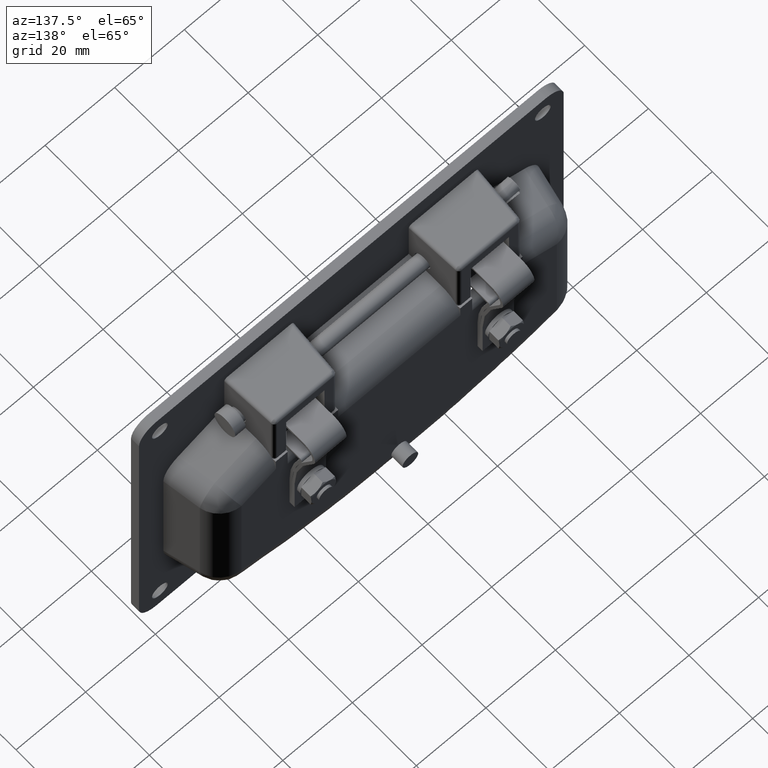
[diagram: clean part render]
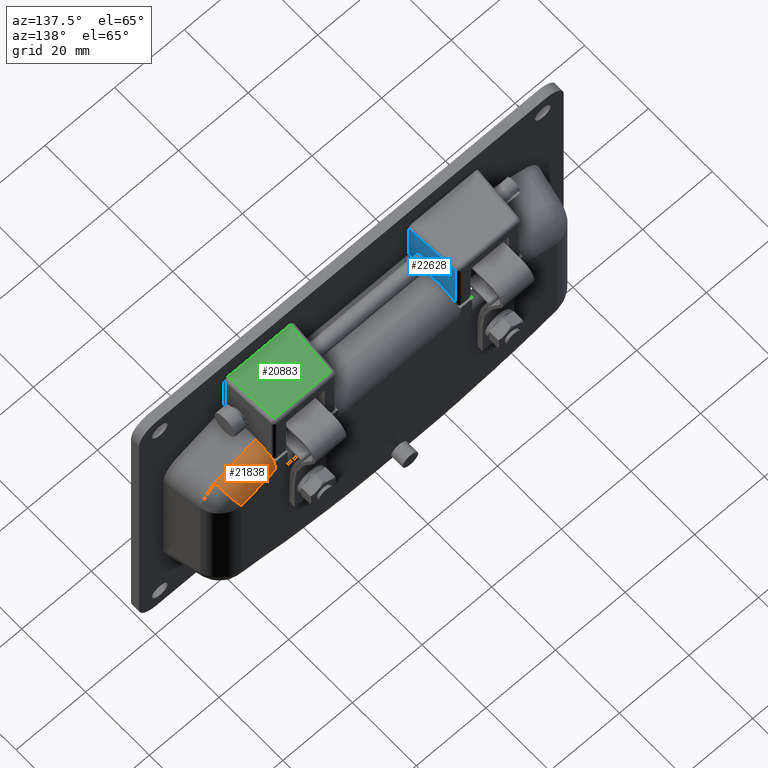
[diagram: same view with three faces highlighted in distinct colors, each labeled with its STEP entity id]
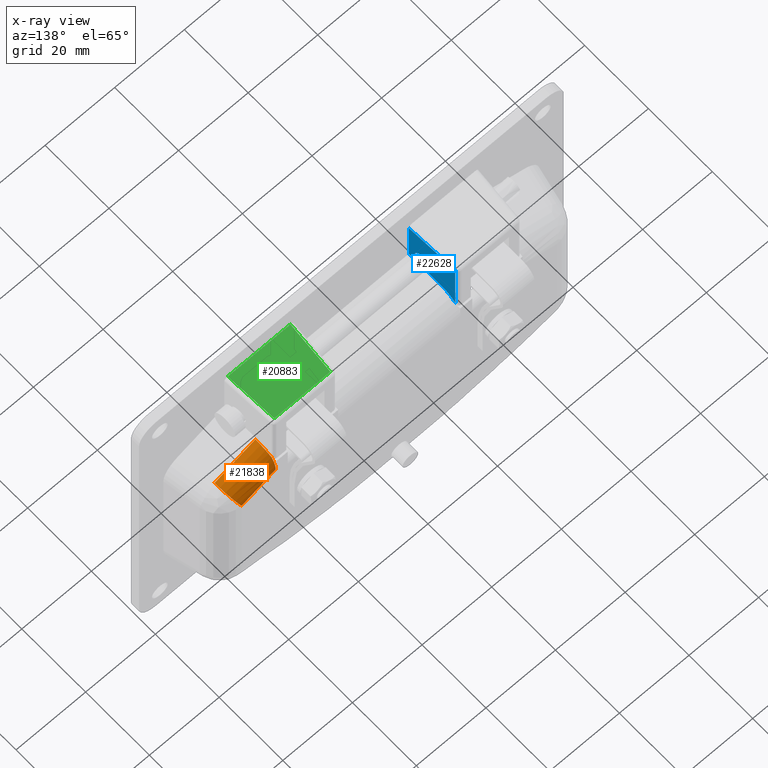
[diagram: x-ray of the same camera — body ghosted, the three highlighted faces saturated]
A machine part, auxiliary view with three faces highlighted in distinct colors.
The next image is the same camera in x-ray (body ghosted, the three faces saturated) — at least one of them is partly hidden behind the body in this view.
Their STEP definitions:

[orange] entity #21838 — the highlighted face is a freeform B-spline surface patch.
#19285=CARTESIAN_POINT('',(9.747390138087290,-35.551461698415451,-7.117702546395960));
#19286=VERTEX_POINT('',#19285);
#21580=CARTESIAN_POINT('',(11.0,-45.261361192773997,-15.492433401015450));
#21581=VERTEX_POINT('',#21580);
#21749=CARTESIAN_POINT('',(5.372821035614480,-47.901389522526202,-9.156376833853161));
#21750=VERTEX_POINT('',#21749);
#21751=CARTESIAN_POINT('',(11.0,-45.261361192773997,-15.492433401015450));
#21752=CARTESIAN_POINT('',(11.000000000000002,-47.468526284402984,-10.195246732211764));
#21753=CARTESIAN_POINT('',(5.372821035614478,-47.901389522526152,-9.156376833853154));
#21761=(BOUNDED_CURVE()B_SPLINE_CURVE(2,(#21751,#21752,#21753),.UNSPECIFIED.,.F.,.U.)CURVE()GEOMETRIC_REPRESENTATION_ITEM()QUASI_UNIFORM_CURVE()RATIONAL_B_SPLINE_CURVE((1.0,0.773342514931795,1.0))REPRESENTATION_ITEM(''));
#21762=EDGE_CURVE('',#21581,#21750,#21761,.T.);
#21781=CARTESIAN_POINT('',(10.996952935492899,-45.476338669520452,-15.805735231518961));
#21782=CARTESIAN_POINT('',(10.996952935492899,-33.103861906944879,-10.650527285351790));
#21783=CARTESIAN_POINT('',(11.179664486677032,-47.857258110826699,-10.091538875380206));
#21784=CARTESIAN_POINT('',(11.179664486677027,-35.484781348251133,-4.936330929213042));
#21785=CARTESIAN_POINT('',(5.057692548044711,-48.217169171224157,-9.227753887876013));
#21786=CARTESIAN_POINT('',(5.057692548044706,-35.844692408648612,-4.072545941708849));
#21794=(BOUNDED_SURFACE()B_SPLINE_SURFACE(1,2,((#21781,#21783,#21785),(#21782,#21784,#21786)),.UNSPECIFIED.,.F.,.F.,.U.)B_SPLINE_SURFACE_WITH_KNOTS((2,2),(3,3),(0.0,13.403520067829101),(0.0,10.608251043468790),.UNSPECIFIED.)GEOMETRIC_REPRESENTATION_ITEM()RATIONAL_B_SPLINE_SURFACE(((1.0,0.748955720789002,1.0),(1.0,0.748955720789002,1.0)))REPRESENTATION_ITEM('')SURFACE());
#21795=CARTESIAN_POINT('',(11.0,-35.465034498850102,-11.410623252175601));
#21796=VERTEX_POINT('',#21795);
#21797=CARTESIAN_POINT('',(9.747390138087294,-35.551461698415459,-7.117702546395957));
#21798=CARTESIAN_POINT('',(10.999999999999996,-35.465034498850144,-9.033468054226820));
#21799=CARTESIAN_POINT('',(11.0,-35.465034498850137,-11.410623252175609));
#21807=(BOUNDED_CURVE()B_SPLINE_CURVE(2,(#21797,#21798,#21799),.UNSPECIFIED.,.F.,.U.)CURVE()GEOMETRIC_REPRESENTATION_ITEM()QUASI_UNIFORM_CURVE()RATIONAL_B_SPLINE_CURVE((1.0,0.954215838794469,1.0))REPRESENTATION_ITEM(''));
#21808=EDGE_CURVE('',#19286,#21796,#21807,.T.);
#21809=ORIENTED_EDGE('',*,*,#21808,.F.);
#21810=CARTESIAN_POINT('',(5.372821035614480,-36.125088023346599,-4.249575695324040));
#21811=VERTEX_POINT('',#21810);
#21812=CARTESIAN_POINT('',(5.372821035614480,-36.125088023346578,-4.249575695324033));
#21813=CARTESIAN_POINT('',(8.137767641610070,-36.014489297236288,-4.802568405498839));
#21814=CARTESIAN_POINT('',(9.747390138087287,-35.551461698415459,-7.117702546395959));
#21822=(BOUNDED_CURVE()B_SPLINE_CURVE(2,(#21812,#21813,#21814),.UNSPECIFIED.,.F.,.U.)CURVE()GEOMETRIC_REPRESENTATION_ITEM()QUASI_UNIFORM_CURVE()RATIONAL_B_SPLINE_CURVE((1.0,0.927573621958008,1.0))REPRESENTATION_ITEM(''));
#21823=EDGE_CURVE('',#21811,#19286,#21822,.T.);
#21824=ORIENTED_EDGE('',*,*,#21823,.F.);
#21825=CARTESIAN_POINT('',(5.372821035614480,-47.901389522526202,-9.156376833853161));
#21826=CARTESIAN_POINT('',(5.372821035614480,-36.125088023346599,-4.249575695324040));
#21827=QUASI_UNIFORM_CURVE('',1,(#21825,#21826),.UNSPECIFIED.,.F.,.U.);
#21828=EDGE_CURVE('',#21750,#21811,#21827,.T.);
#21829=ORIENTED_EDGE('',*,*,#21828,.F.);
#21830=ORIENTED_EDGE('',*,*,#21762,.F.);
#21831=CARTESIAN_POINT('',(11.0,-35.465034498850102,-11.410623252175601));
#21832=CARTESIAN_POINT('',(11.0,-45.261361192773997,-15.492433401015450));
#21833=QUASI_UNIFORM_CURVE('',1,(#21831,#21832),.UNSPECIFIED.,.F.,.U.);
#21834=EDGE_CURVE('',#21796,#21581,#21833,.T.);
#21835=ORIENTED_EDGE('',*,*,#21834,.F.);
#21836=EDGE_LOOP('',(#21809,#21824,#21829,#21830,#21835));
#21837=FACE_OUTER_BOUND('',#21836,.T.);
#21838=ADVANCED_FACE('',(#21837),#21794,.T.);

[blue] entity #22628 — the highlighted face is a freeform B-spline surface patch.
#15331=CARTESIAN_POINT('',(-1.392077164811007,16.679766821877291,1.767659799625410));
#15332=VERTEX_POINT('',#15331);
#15333=CARTESIAN_POINT('',(-2.250000000000000,16.620629312356272,0.0));
#15334=VERTEX_POINT('',#15333);
#15335=CARTESIAN_POINT('',(-1.392077164811007,16.679766821877287,1.767659799625411));
#15336=CARTESIAN_POINT('',(-2.250000000000000,16.620629312356272,1.092023691198561));
#15337=CARTESIAN_POINT('',(-2.250000000000000,16.620629312356272,0.0));
#15345=(BOUNDED_CURVE()B_SPLINE_CURVE(2,(#15335,#15336,#15337),.UNSPECIFIED.,.F.,.U.)B_SPLINE_CURVE_WITH_KNOTS((3,3),(0.857127540890208,1.0),.UNSPECIFIED.)CURVE()GEOMETRIC_REPRESENTATION_ITEM()RATIONAL_B_SPLINE_CURVE((0.856547225993861,0.832614502286159,1.0))REPRESENTATION_ITEM(''));
#15346=EDGE_CURVE('',#15332,#15334,#15345,.T.);
#15348=CARTESIAN_POINT('',(2.250000000000000,16.930818972700930,-2.755364E-016));
#15349=VERTEX_POINT('',#15348);
#15350=CARTESIAN_POINT('',(-2.250000000000000,16.620629312356272,0.0));
#15351=CARTESIAN_POINT('',(-2.250000000000000,16.620629312356279,-2.250000000000000));
#15352=CARTESIAN_POINT('',(-1.377682E-016,16.775724142528599,-2.250000000000000));
#15353=CARTESIAN_POINT('',(2.250000000000000,16.930818972700923,-2.250000000000000));
#15354=CARTESIAN_POINT('',(2.250000000000000,16.930818972700930,-2.755364E-016));
#15362=(BOUNDED_CURVE()B_SPLINE_CURVE(2,(#15350,#15351,#15352,#15353,#15354),.UNSPECIFIED.,.F.,.U.)B_SPLINE_CURVE_WITH_KNOTS((3,2,3),(0.0,0.250000000000000,0.500000000000000),.UNSPECIFIED.)CURVE()GEOMETRIC_REPRESENTATION_ITEM()RATIONAL_B_SPLINE_CURVE((1.0,0.707106781186548,1.0,0.707106781186548,1.0))REPRESENTATION_ITEM(''));
#15363=EDGE_CURVE('',#15334,#15349,#15362,.T.);
#15365=CARTESIAN_POINT('',(1.685150371773629,16.891883302851209,1.490895108487247));
#15366=VERTEX_POINT('',#15365);
#15367=CARTESIAN_POINT('',(2.250000000000000,16.930818972700930,-2.755364E-016));
#15368=CARTESIAN_POINT('',(2.250000000000000,16.930818972700930,0.852448744567267));
#15369=CARTESIAN_POINT('',(1.685150371773628,16.891883302851216,1.490895108487247));
#15377=(BOUNDED_CURVE()B_SPLINE_CURVE(2,(#15367,#15368,#15369),.UNSPECIFIED.,.F.,.U.)B_SPLINE_CURVE_WITH_KNOTS((3,3),(0.500000000000000,0.615779888059901),.UNSPECIFIED.)CURVE()GEOMETRIC_REPRESENTATION_ITEM()RATIONAL_B_SPLINE_CURVE((1.0,0.864355423649097,0.854350158224916))REPRESENTATION_ITEM(''));
#15378=EDGE_CURVE('',#15349,#15366,#15377,.T.);
#15447=CARTESIAN_POINT('',(1.685150371773629,16.891883302851213,1.490895108487248));
#15448=CARTESIAN_POINT('',(1.013551095801346,16.845589269228277,2.250000000000000));
#15449=CARTESIAN_POINT('',(4.133046E-016,16.775724142528599,2.250000000000000));
#15450=CARTESIAN_POINT('',(-0.779601503623352,16.721985403503460,2.250000000000000));
#15451=CARTESIAN_POINT('',(-1.392077164811007,16.679766821877283,1.767659799625410));
#15459=(BOUNDED_CURVE()B_SPLINE_CURVE(2,(#15447,#15448,#15449,#15450,#15451),.UNSPECIFIED.,.F.,.U.)B_SPLINE_CURVE_WITH_KNOTS((3,2,3),(0.615779888059901,0.750000000000000,0.857127540890209),.UNSPECIFIED.)CURVE()GEOMETRIC_REPRESENTATION_ITEM()RATIONAL_B_SPLINE_CURVE((0.854350158224917,0.842751357537450,1.0,0.874492278900388,0.856547225993861))REPRESENTATION_ITEM(''));
#15460=EDGE_CURVE('',#15366,#15332,#15459,.T.);
#18367=CARTESIAN_POINT('',(9.568767854434460,17.435309220458301,-6.872315360067270));
#18368=VERTEX_POINT('',#18367);
#18414=CARTESIAN_POINT('',(9.568767854434469,17.435309220458301,9.566583320531560));
#18415=VERTEX_POINT('',#18414);
#18429=CARTESIAN_POINT('',(9.568767854434460,17.435309220458301,-6.872315360067270));
#18430=CARTESIAN_POINT('',(9.568767854434469,17.435309220458301,9.566583320531560));
#18431=QUASI_UNIFORM_CURVE('',1,(#18429,#18430),.UNSPECIFIED.,.F.,.U.);
#18432=EDGE_CURVE('',#18368,#18415,#18431,.T.);
#18558=CARTESIAN_POINT('',(-3.999999999999775,16.500000000000000,10.502367310374559));
#18559=VERTEX_POINT('',#18558);
#18575=CARTESIAN_POINT('',(9.568767854434469,17.435309220458301,9.566583320531560));
#18576=CARTESIAN_POINT('',(-3.999999999999775,16.500000000000000,10.502367310374559));
#18577=QUASI_UNIFORM_CURVE('',1,(#18575,#18576),.UNSPECIFIED.,.F.,.U.);
#18578=EDGE_CURVE('',#18415,#18559,#18577,.T.);
#22383=CARTESIAN_POINT('',(-3.999999999999885,16.500000000000000,-2.375000000000085));
#22384=VERTEX_POINT('',#22383);
#22390=CARTESIAN_POINT('',(-3.999999999999885,16.500000000000000,-2.375000000000085));
#22391=CARTESIAN_POINT('',(-3.999999999999775,16.500000000000000,10.502367310374559));
#22392=QUASI_UNIFORM_CURVE('',1,(#22390,#22391),.UNSPECIFIED.,.F.,.U.);
#22393=EDGE_CURVE('',#22384,#18559,#22392,.T.);
#22493=CARTESIAN_POINT('',(5.372821035614480,17.146078260779650,-4.249575695324035));
#22494=VERTEX_POINT('',#22493);
#22495=CARTESIAN_POINT('',(5.372821035614481,17.146078260779650,-4.249575695324036));
#22496=CARTESIAN_POINT('',(7.966269145267775,17.324847324836277,-4.768268496025873));
#22497=CARTESIAN_POINT('',(9.568767854434460,17.435309220458301,-6.872315360067270));
#22505=(BOUNDED_CURVE()B_SPLINE_CURVE(2,(#22495,#22496,#22497),.UNSPECIFIED.,.F.,.U.)CURVE()GEOMETRIC_REPRESENTATION_ITEM()QUASI_UNIFORM_CURVE()RATIONAL_B_SPLINE_CURVE((1.0,0.935455981099363,1.0))REPRESENTATION_ITEM(''));
#22506=EDGE_CURVE('',#22494,#18368,#22505,.T.);
#22574=CARTESIAN_POINT('',(5.372821035614480,17.146078260779650,-4.249575695324035));
#22575=CARTESIAN_POINT('',(-3.999999999999885,16.500000000000000,-2.375000000000085));
#22576=QUASI_UNIFORM_CURVE('',1,(#22574,#22575),.UNSPECIFIED.,.F.,.U.);
#22577=EDGE_CURVE('',#22494,#22384,#22576,.T.);
#22610=CARTESIAN_POINT('',(-4.677759879552804,16.453281309592491,-7.740180826806853));
#22611=CARTESIAN_POINT('',(10.246527127416201,17.482027869054232,-7.740180826806853));
#22612=CARTESIAN_POINT('',(-4.677759879552804,16.453281309592491,11.370231845063531));
#22613=CARTESIAN_POINT('',(10.246527127416201,17.482027869054239,11.370231845063531));
#22614=B_SPLINE_SURFACE_WITH_KNOTS('',1,1,((#22610,#22612),(#22611,#22613)),.UNSPECIFIED.,.F.,.F.,.U.,(2,2),(2,2),(0.0,14.959701272083890),(0.0,19.110412671870389),.UNSPECIFIED.);
#22615=ORIENTED_EDGE('',*,*,#22506,.T.);
#22616=ORIENTED_EDGE('',*,*,#18432,.T.);
#22617=ORIENTED_EDGE('',*,*,#18578,.T.);
#22618=ORIENTED_EDGE('',*,*,#22393,.F.);
#22619=ORIENTED_EDGE('',*,*,#22577,.F.);
#22620=EDGE_LOOP('',(#22615,#22616,#22617,#22618,#22619));
#22621=FACE_OUTER_BOUND('',#22620,.T.);
#22622=ORIENTED_EDGE('',*,*,#15363,.F.);
#22623=ORIENTED_EDGE('',*,*,#15346,.F.);
#22624=ORIENTED_EDGE('',*,*,#15460,.F.);
#22625=ORIENTED_EDGE('',*,*,#15378,.F.);
#22626=EDGE_LOOP('',(#22622,#22623,#22624,#22625));
#22627=FACE_BOUND('',#22626,.T.);
#22628=ADVANCED_FACE('',(#22621,#22627),#22614,.T.);

[green] entity #20883 — the highlighted face is a freeform B-spline surface patch.
#18967=CARTESIAN_POINT('',(9.568802596268618,-18.432941909475900,10.564213614150759));
#18968=VERTEX_POINT('',#18967);
#19013=CARTESIAN_POINT('',(-3.999999999999775,-17.497630294227001,11.500000000000000));
#19014=VERTEX_POINT('',#19013);
#19030=CARTESIAN_POINT('',(9.568802596268618,-18.432941909475900,10.564213614150759));
#19031=CARTESIAN_POINT('',(-3.999999999999775,-17.497630294227001,11.500000000000000));
#19032=QUASI_UNIFORM_CURVE('',1,(#19030,#19031),.UNSPECIFIED.,.F.,.U.);
#19033=EDGE_CURVE('',#18968,#19014,#19032,.T.);
#19058=CARTESIAN_POINT('',(9.568802596268618,-34.566153533946000,10.564213614150759));
#19059=VERTEX_POINT('',#19058);
#19081=CARTESIAN_POINT('',(9.568802596268618,-34.566153533946000,10.564213614150759));
#19082=CARTESIAN_POINT('',(9.568802596268618,-18.432941909475900,10.564213614150759));
#19083=QUASI_UNIFORM_CURVE('',1,(#19081,#19082),.UNSPECIFIED.,.F.,.U.);
#19084=EDGE_CURVE('',#19059,#18968,#19083,.T.);
#19161=CARTESIAN_POINT('',(-3.999999999999775,-35.502369705882757,11.500000000000000));
#19162=VERTEX_POINT('',#19161);
#19182=CARTESIAN_POINT('',(-3.999999999999775,-35.502369705882757,11.500000000000000));
#19183=CARTESIAN_POINT('',(9.568802596268618,-34.566153533946000,10.564213614150759));
#19184=QUASI_UNIFORM_CURVE('',1,(#19182,#19183),.UNSPECIFIED.,.F.,.U.);
#19185=EDGE_CURVE('',#19162,#19059,#19184,.T.);
#20868=CARTESIAN_POINT('',(-4.677761663384410,-36.401705495194662,11.546742528159420));
#20869=CARTESIAN_POINT('',(10.246564623596900,-36.401705495194662,10.517471060891580));
#20870=CARTESIAN_POINT('',(-4.677761663384410,-16.598294504915110,11.546742528159420));
#20871=CARTESIAN_POINT('',(10.246564623596900,-16.598294504915110,10.517471060891580));
#20872=B_SPLINE_SURFACE_WITH_KNOTS('',1,1,((#20868,#20870),(#20869,#20871)),.UNSPECIFIED.,.F.,.F.,.U.,(2,2),(2,2),(0.0,14.959776564962890),(0.0,19.803410990279549),.UNSPECIFIED.);
#20873=ORIENTED_EDGE('',*,*,#19084,.T.);
#20874=ORIENTED_EDGE('',*,*,#19033,.T.);
#20875=CARTESIAN_POINT('',(-3.999999999999775,-17.497630294227001,11.500000000000000));
#20876=CARTESIAN_POINT('',(-3.999999999999775,-35.502369705882757,11.500000000000000));
#20877=QUASI_UNIFORM_CURVE('',1,(#20875,#20876),.UNSPECIFIED.,.F.,.U.);
#20878=EDGE_CURVE('',#19014,#19162,#20877,.T.);
#20879=ORIENTED_EDGE('',*,*,#20878,.T.);
#20880=ORIENTED_EDGE('',*,*,#19185,.T.);
#20881=EDGE_LOOP('',(#20873,#20874,#20879,#20880));
#20882=FACE_OUTER_BOUND('',#20881,.T.);
#20883=ADVANCED_FACE('',(#20882),#20872,.T.);